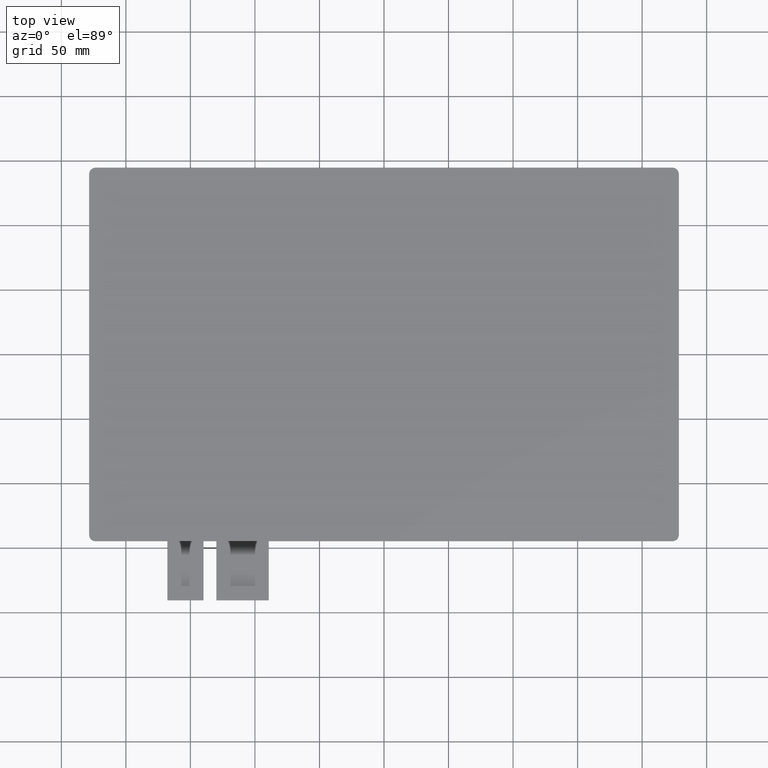
[diagram: clean part render]
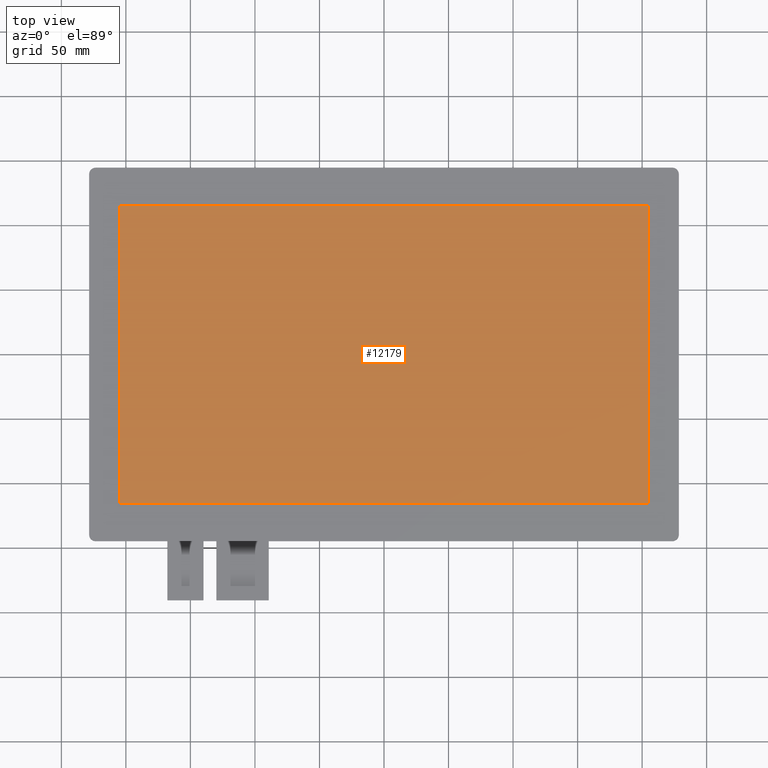
[diagram: same view with one face highlighted and labeled with its STEP entity id]
A machine part, top view. The second image highlights one B-rep face of the part: STEP entity #12179.
In plain terms, the highlighted planar face has unit normal (0, 0, 1).
Its self-contained STEP definition (entity closure, byte-faithful):
#615=PLANE('',#12801);
#1199=FACE_OUTER_BOUND('',#1785,.T.);
#1785=EDGE_LOOP('',(#11543,#11544,#11545,#11546));
#3479=LINE('',#19123,#5195);
#3480=LINE('',#19125,#5196);
#3481=LINE('',#19127,#5197);
#3482=LINE('',#19128,#5198);
#5195=VECTOR('',#15651,10.);
#5196=VECTOR('',#15652,10.);
#5197=VECTOR('',#15653,10.);
#5198=VECTOR('',#15654,10.);
#6378=VERTEX_POINT('',#19121);
#6379=VERTEX_POINT('',#19122);
#6380=VERTEX_POINT('',#19124);
#6381=VERTEX_POINT('',#19126);
#8096=EDGE_CURVE('',#6378,#6379,#3479,.T.);
#8097=EDGE_CURVE('',#6380,#6378,#3480,.T.);
#8098=EDGE_CURVE('',#6381,#6380,#3481,.T.);
#8099=EDGE_CURVE('',#6379,#6381,#3482,.T.);
#11543=ORIENTED_EDGE('',*,*,#8096,.T.);
#11544=ORIENTED_EDGE('',*,*,#8099,.T.);
#11545=ORIENTED_EDGE('',*,*,#8098,.T.);
#11546=ORIENTED_EDGE('',*,*,#8097,.T.);
#12179=ADVANCED_FACE('',(#1199),#615,.T.);
#12801=AXIS2_PLACEMENT_3D('',#19160,#15687,#15688);
#15651=DIRECTION('',(0.,1.,0.));
#15652=DIRECTION('',(1.,0.,0.));
#15653=DIRECTION('',(0.,-1.,0.));
#15654=DIRECTION('',(-1.,0.,0.));
#15687=DIRECTION('center_axis',(0.,0.,1.));
#15688=DIRECTION('ref_axis',(1.,0.,0.));
#19121=CARTESIAN_POINT('',(204.9,-115.2,1.8));
#19122=CARTESIAN_POINT('',(204.9,115.2,1.8));
#19123=CARTESIAN_POINT('',(204.9,-57.6,1.8));
#19124=CARTESIAN_POINT('',(-204.9,-115.2,1.8));
#19125=CARTESIAN_POINT('',(-102.45,-115.2,1.8));
#19126=CARTESIAN_POINT('',(-204.9,115.2,1.8));
#19127=CARTESIAN_POINT('',(-204.9,57.6,1.8));
#19128=CARTESIAN_POINT('',(102.45,115.2,1.8));
#19160=CARTESIAN_POINT('Origin',(-7.105427357601E-14,1.77635683940025E-14,
1.8));